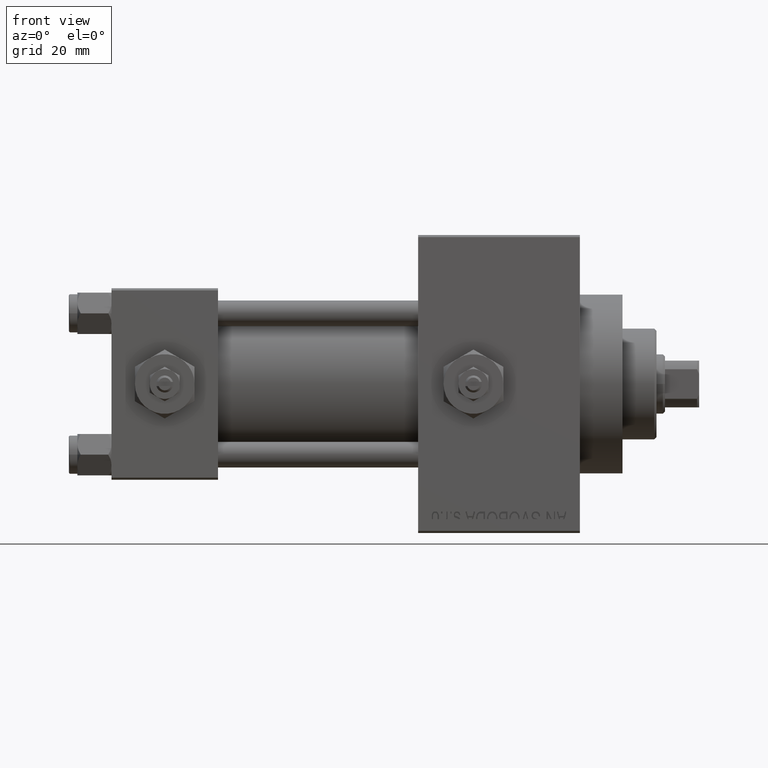
[diagram: clean part render]
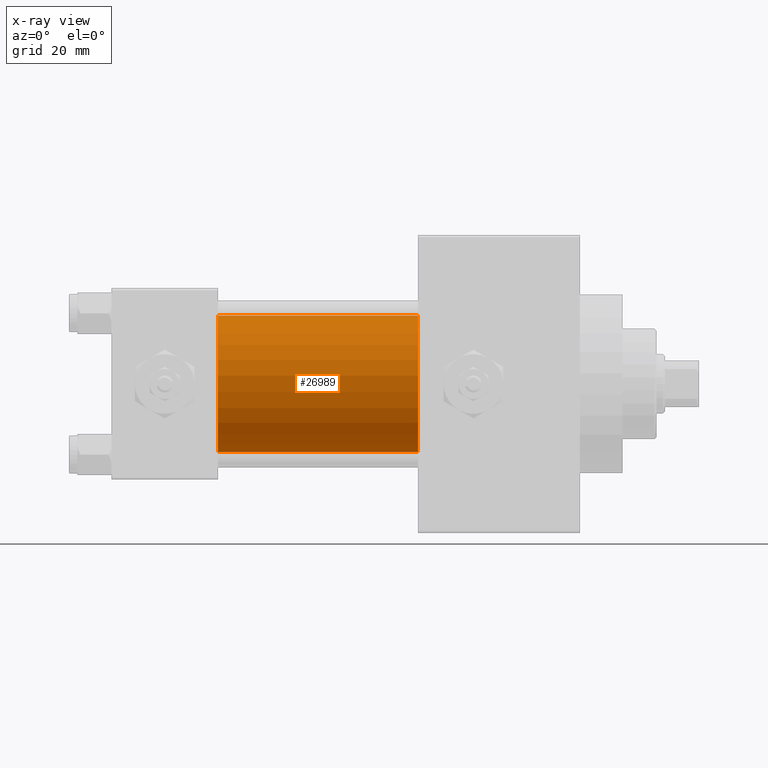
[diagram: x-ray — body ghosted, one internal face saturated and labeled with its STEP entity id]
A machine part, front view, then the same camera in x-ray: the body is ghosted and one INTERNAL B-rep face — a face not visible from any outside direction — is saturated and labeled: STEP entity #26989.
In plain terms, the highlighted cylindrical surface (partial cylindrical patch) has radius 16 mm, axis along (-1, -0, -0).
Its self-contained STEP definition (entity closure, byte-faithful):
#760 = CARTESIAN_POINT ( 'NONE',  ( 72.00000000000001421, -6.426503353294456087E-16, -16.00000000000000000 ) ) ;
#1291 = CARTESIAN_POINT ( 'NONE',  ( 72.00000000000001421, -2.602085213965210642E-15, 0.000000000000000000 ) ) ;
#1950 = CIRCLE ( 'NONE', #9103, 16.00000000000000000 ) ;
#2036 = ORIENTED_EDGE ( 'NONE', *, *, #18273, .T. ) ;
#4297 = CIRCLE ( 'NONE', #38370, 16.00000000000000000 ) ;
#6261 = ORIENTED_EDGE ( 'NONE', *, *, #22691, .F. ) ;
#7097 = LINE ( 'NONE', #37117, #42341 ) ;
#8213 = EDGE_LOOP ( 'NONE', ( #2036, #40066, #36773, #6261 ) ) ;
#8966 = FACE_OUTER_BOUND ( 'NONE', #8213, .T. ) ;
#9103 = AXIS2_PLACEMENT_3D ( 'NONE', #41160, #18318, #17568 ) ;
#11046 = VERTEX_POINT ( 'NONE', #21452 ) ;
#15517 = CARTESIAN_POINT ( 'NONE',  ( 72.00000000000001421, -2.602085213965210642E-15, 0.000000000000000000 ) ) ;
#17568 = DIRECTION ( 'NONE',  ( 0.000000000000000000, 0.000000000000000000, -1.000000000000000000 ) ) ;
#17605 = CARTESIAN_POINT ( 'NONE',  ( 25.00000000000000000, -6.426503353294456087E-16, -16.00000000000000000 ) ) ;
#18273 = EDGE_CURVE ( 'NONE', #11046, #32925, #4297, .T. ) ;
#18318 = DIRECTION ( 'NONE',  ( 1.000000000000000000, 0.000000000000000000, 0.000000000000000000 ) ) ;
#20456 = VERTEX_POINT ( 'NONE', #17605 ) ;
#21452 = CARTESIAN_POINT ( 'NONE',  ( 72.00000000000001421, -2.602085213965210642E-15, 16.00000000000000000 ) ) ;
#22634 = CARTESIAN_POINT ( 'NONE',  ( 25.00000000000000000, -2.602085213965210642E-15, 16.00000000000000000 ) ) ;
#22691 = EDGE_CURVE ( 'NONE', #11046, #43801, #46618, .T. ) ;
#23937 = DIRECTION ( 'NONE',  ( 0.000000000000000000, 0.000000000000000000, -1.000000000000000000 ) ) ;
#26989 = ADVANCED_FACE ( 'NONE', ( #8966 ), #42976, .F. ) ;
#27293 = VECTOR ( 'NONE', #42154, 1000.000000000000000 ) ;
#28053 = DIRECTION ( 'NONE',  ( 0.000000000000000000, 0.000000000000000000, 1.000000000000000000 ) ) ;
#31697 = CARTESIAN_POINT ( 'NONE',  ( 72.00000000000001421, -2.602085213965210642E-15, 16.00000000000000000 ) ) ;
#32925 = VERTEX_POINT ( 'NONE', #760 ) ;
#34131 = DIRECTION ( 'NONE',  ( -1.000000000000000000, -0.000000000000000000, -0.000000000000000000 ) ) ;
#34391 = DIRECTION ( 'NONE',  ( 1.000000000000000000, 0.000000000000000000, 0.000000000000000000 ) ) ;
#36283 = EDGE_CURVE ( 'NONE', #43801, #20456, #1950, .T. ) ;
#36773 = ORIENTED_EDGE ( 'NONE', *, *, #36283, .F. ) ;
#37117 = CARTESIAN_POINT ( 'NONE',  ( 72.00000000000001421, -6.426503353294456087E-16, -16.00000000000000000 ) ) ;
#38318 = EDGE_CURVE ( 'NONE', #32925, #20456, #7097, .T. ) ;
#38370 = AXIS2_PLACEMENT_3D ( 'NONE', #15517, #34391, #23937 ) ;
#40066 = ORIENTED_EDGE ( 'NONE', *, *, #38318, .T. ) ;
#41160 = CARTESIAN_POINT ( 'NONE',  ( 25.00000000000000000, -2.602085213965210642E-15, 0.000000000000000000 ) ) ;
#42154 = DIRECTION ( 'NONE',  ( -1.000000000000000000, -0.000000000000000000, -0.000000000000000000 ) ) ;
#42341 = VECTOR ( 'NONE', #34131, 1000.000000000000000 ) ;
#42976 = CYLINDRICAL_SURFACE ( 'NONE', #44113, 16.00000000000000000 ) ;
#43801 = VERTEX_POINT ( 'NONE', #22634 ) ;
#44113 = AXIS2_PLACEMENT_3D ( 'NONE', #1291, #46469, #28053 ) ;
#46469 = DIRECTION ( 'NONE',  ( -1.000000000000000000, -0.000000000000000000, -0.000000000000000000 ) ) ;
#46618 = LINE ( 'NONE', #31697, #27293 ) ;